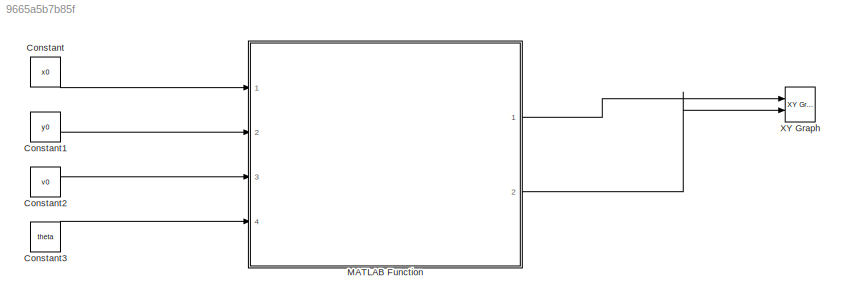
MODEL slx_9665a5b7b85f
KIND model
CONFIG AbsTol = auto
CONFIG EnableMultiTasking = off
CONFIG FixedStep = auto
CONFIG MaxStep = auto
CONFIG MinStep = auto
CONFIG RelTol = 1e-3
CONFIG SampleTimeConstraint = Unconstrained
CONFIG SolverName = VariableStepAuto
CONFIG StartTime = 0.0
CONFIG StopTime = 10.0
BLOCK [Constant] Constant
  Value = x0
BLOCK [Constant] Constant1
  Value = y0
BLOCK [Constant] Constant2
  Value = v0
BLOCK [Constant] Constant3
  Value = theta
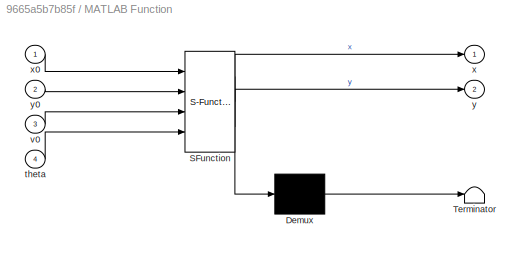
BLOCK [SubSystem] MATLAB Function
  ErrorFcn = Stateflow.Translate.translate
  PermitHierarchicalResolution = ExplicitOnly
  Ports = [4, 2]
  RequestExecContextInheritance = off
  SFBlockType = MATLAB Function
  TreatAsAtomicUnit = on
BLOCK [Demux] MATLAB Function/ Demux 
  Outputs = 1
  Ports = [1, 1]
BLOCK [S-Function] MATLAB Function/ SFunction 
  EnableBusSupport = on
  FunctionName = sf_sfun
  PortCounts = [4 3]
  Ports = [4, 3]
  SFcnIsStateOwnerBlock = off
  SFunctionDeploymentMode = off
  Tag = Stateflow S-Function 2
BLOCK [Terminator] MATLAB Function/ Terminator 
BLOCK [Inport] MATLAB Function/theta
  Port = 4
BLOCK [Inport] MATLAB Function/v0
  Port = 3
BLOCK [Outport] MATLAB Function/x
BLOCK [Inport] MATLAB Function/x0
BLOCK [Outport] MATLAB Function/y
  Port = 2
BLOCK [Inport] MATLAB Function/y0
  Port = 2
BLOCK [Reference] XY Graph  REF=simulink/Sinks/XY Graph
  Ports = [2]
  SourceBlock = simulink/Sinks/XY Graph
  SourceProductBaseCode = SL
  SourceType = XY scope.
LINE Constant1:1 -> MATLAB Function:2
LINE Constant2:1 -> MATLAB Function:3
LINE Constant3:1 -> MATLAB Function:4
LINE Constant:1 -> MATLAB Function:1
LINE MATLAB Function:1 -> XY Graph:1
LINE MATLAB Function:2 -> XY Graph:2
CHART MATLAB Function states=1 transitions=1
  STATE_LABEL 'eML_blk_kernel()'
  STATE_LABEL 'SCRIPT:\nfunction [x,y] = TrajectoryFunction(x0,y0,v0,theta)\ng=9.81;\nvx=v0*cos(theta);\nvy=v0*sin(theta);\ntf=2*vy/g;\nt=linspace(0,tf,30);\n %x and y Equations\nx=x0+vx*t;\ny=y0+vy*t-(g*t.^2)/2;\n%Maximum Height\n%hmax=(v0^2*sin(theta)^2)/(2*g);\nend\n'
CHART  states=0 transitions=0
